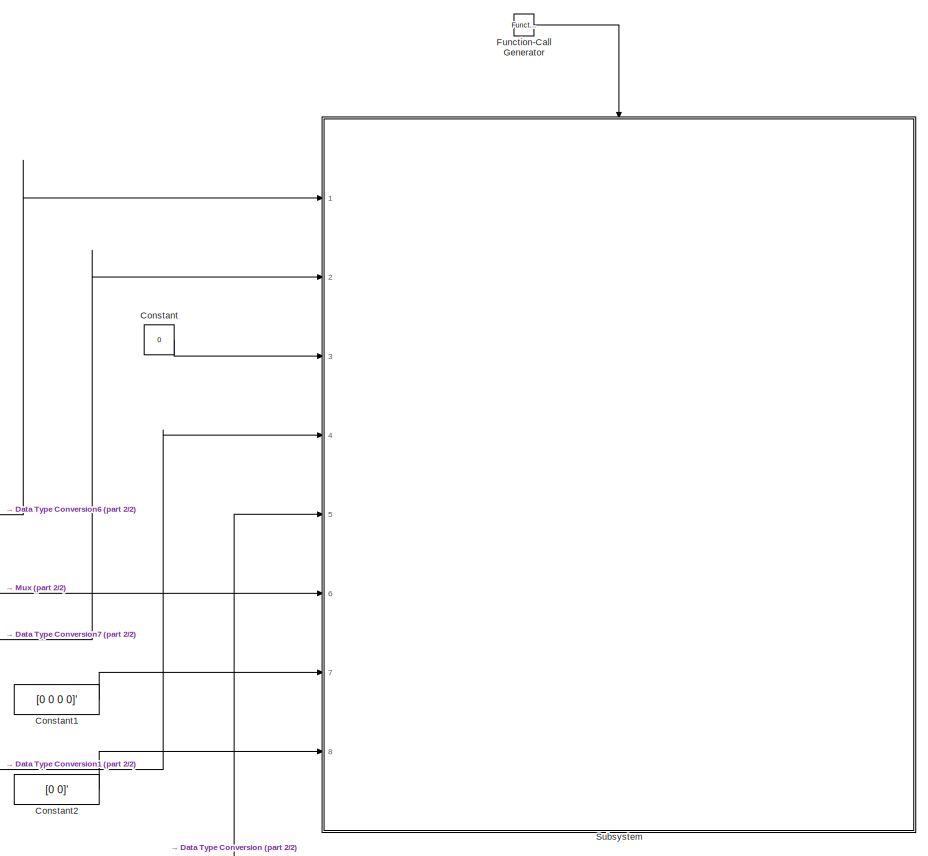
[diagram: root canvas - part 1/2, right side, full height]
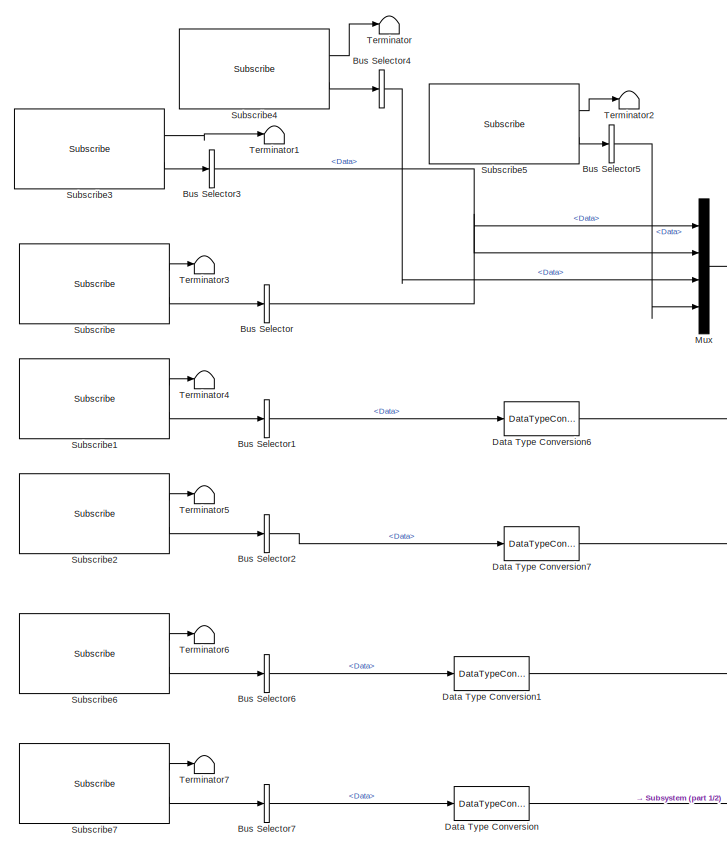
[diagram: root canvas - part 2/2, left side, full height]
MODEL slx_f530a9fc561e
KIND model
CONFIG AbsTol = auto
CONFIG EnableMultiTasking = off
CONFIG FixedStep = 0.001
CONFIG MaxStep = auto
CONFIG MinStep = auto
CONFIG RelTol = 1e-3
CONFIG SampleTimeConstraint = Unconstrained
CONFIG SolverName = FixedStepAuto
CONFIG StartTime = 0.0
CONFIG StopTime = 10.0
BLOCK [BusSelector] Bus Selector
  OutputSignals = Data
  Ports = [1, 1]
BLOCK [BusSelector] Bus Selector1
  OutputSignals = Data
  Ports = [1, 1]
BLOCK [BusSelector] Bus Selector2
  OutputSignals = Data
  Ports = [1, 1]
BLOCK [BusSelector] Bus Selector3
  OutputSignals = Data
  Ports = [1, 1]
BLOCK [BusSelector] Bus Selector4
  OutputSignals = Data
  Ports = [1, 1]
BLOCK [BusSelector] Bus Selector5
  OutputSignals = Data
  Ports = [1, 1]
BLOCK [BusSelector] Bus Selector6
  OutputSignals = Data
  Ports = [1, 1]
BLOCK [BusSelector] Bus Selector7
  OutputSignals = Data
  Ports = [1, 1]
BLOCK [Constant] Constant
  Value = 0
BLOCK [Constant] Constant1
  Value = [0 0 0 0]'
BLOCK [Constant] Constant2
  Value = [0 0]'
BLOCK [DataTypeConversion] Data Type Conversion
  OutDataTypeStr = double
  RndMeth = Floor
  SaturateOnIntegerOverflow = off
BLOCK [DataTypeConversion] Data Type Conversion1
  OutDataTypeStr = double
  RndMeth = Floor
  SaturateOnIntegerOverflow = off
BLOCK [DataTypeConversion] Data Type Conversion6
  OutDataTypeStr = double
  RndMeth = Floor
  SaturateOnIntegerOverflow = off
BLOCK [DataTypeConversion] Data Type Conversion7
  OutDataTypeStr = double
  RndMeth = Floor
  SaturateOnIntegerOverflow = off
BLOCK [Reference] Function-Call Generator  REF=simulink/Ports &
Subsystems/Function-Call
Generator
  Ports = [0, 1]
  SourceBlock = simulink/Ports &\nSubsystems/Function-Call\nGenerator
  SourceProductBaseCode = SL
  SourceType = Function-Call Generator
BLOCK [Mux] Mux
  DisplayOption = bar
  Ports = [4, 1]
BLOCK [Reference] Subscribe  REF=robotlib/Subscribe
  Ports = [0, 2]
  SourceBlock = robotlib/Subscribe
  SourceProductBaseCode = RR
  SourceType = ROS Subscribe
BLOCK [Reference] Subscribe1  REF=robotlib/Subscribe
  Ports = [0, 2]
  SourceBlock = robotlib/Subscribe
  SourceProductBaseCode = RR
  SourceType = ROS Subscribe
BLOCK [Reference] Subscribe2  REF=robotlib/Subscribe
  Ports = [0, 2]
  SourceBlock = robotlib/Subscribe
  SourceProductBaseCode = RR
  SourceType = ROS Subscribe
BLOCK [Reference] Subscribe3  REF=robotlib/Subscribe
  Ports = [0, 2]
  SourceBlock = robotlib/Subscribe
  SourceProductBaseCode = RR
  SourceType = ROS Subscribe
BLOCK [Reference] Subscribe4  REF=robotlib/Subscribe
  Ports = [0, 2]
  SourceBlock = robotlib/Subscribe
  SourceProductBaseCode = RR
  SourceType = ROS Subscribe
BLOCK [Reference] Subscribe5  REF=robotlib/Subscribe
  Ports = [0, 2]
  SourceBlock = robotlib/Subscribe
  SourceProductBaseCode = RR
  SourceType = ROS Subscribe
BLOCK [Reference] Subscribe6  REF=robotlib/Subscribe
  Ports = [0, 2]
  SourceBlock = robotlib/Subscribe
  SourceProductBaseCode = RR
  SourceType = ROS Subscribe
BLOCK [Reference] Subscribe7  REF=robotlib/Subscribe
  Ports = [0, 2]
  SourceBlock = robotlib/Subscribe
  SourceProductBaseCode = RR
  SourceType = ROS Subscribe
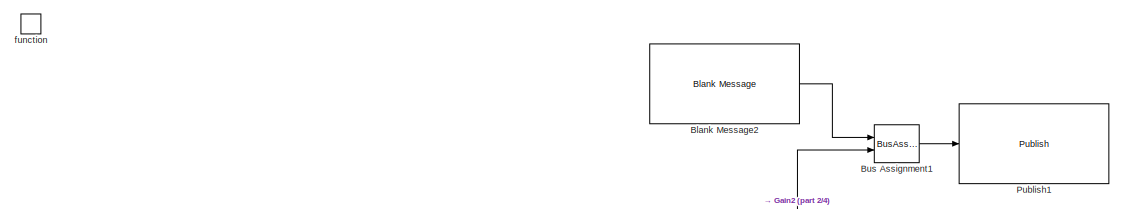
[diagram: Subsystem - part 1/4, top center region]
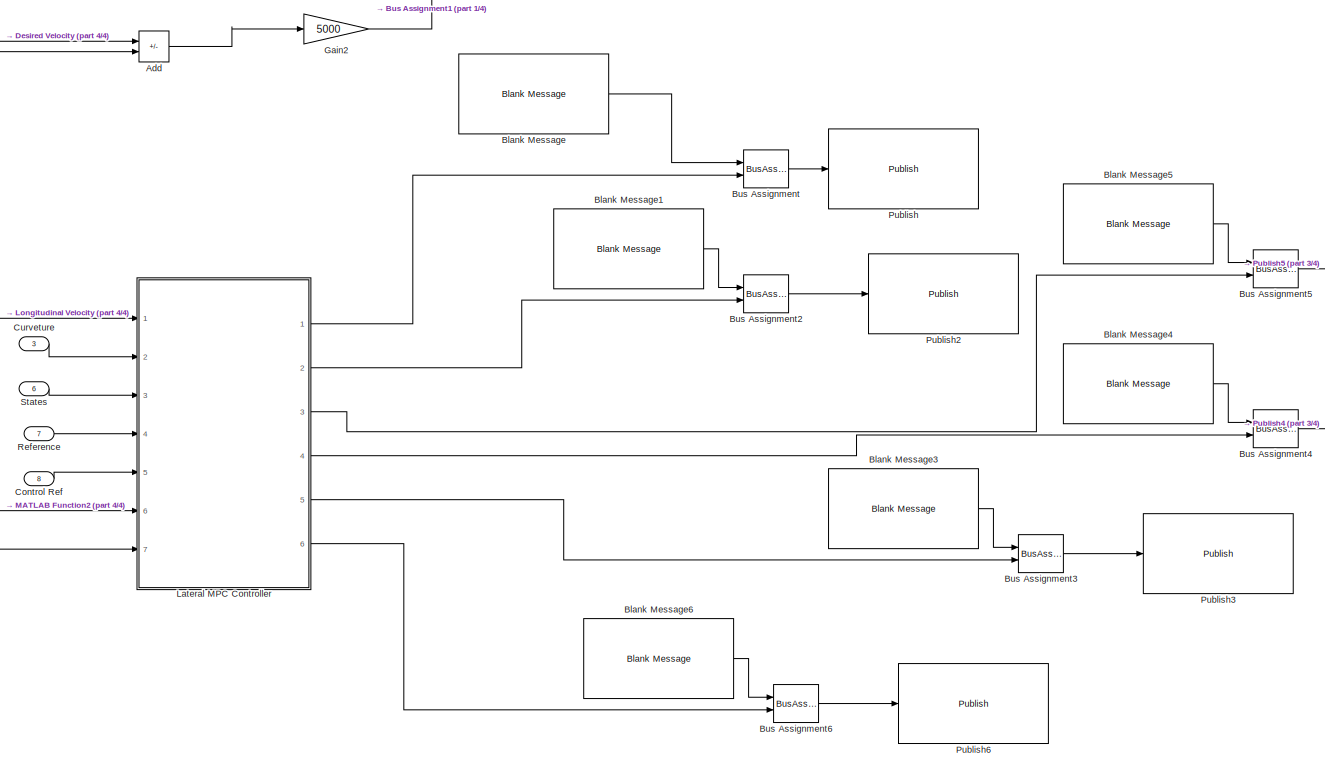
[diagram: Subsystem - part 2/4, center side, full height]
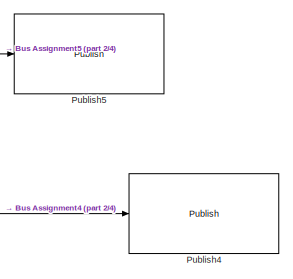
[diagram: Subsystem - part 3/4, middle right region]
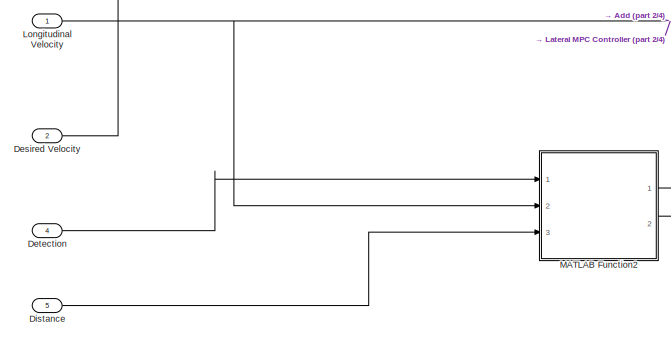
[diagram: Subsystem - part 4/4, bottom left region]
BLOCK [SubSystem] Subsystem
  Ports = [8, 0, 0, 1]
  RequestExecContextInheritance = off
BLOCK [Sum] Subsystem/Add
  IconShape = rectangular
  Inputs = +-
  Ports = [2, 1]
BLOCK [Reference] Subsystem/Blank Message  REF=robotlib/Blank Message
  Ports = [0, 1]
  SourceBlock = robotlib/Blank Message
  SourceProductBaseCode = RR
  SourceType = ROS Blank Message
BLOCK [Reference] Subsystem/Blank Message1  REF=robotlib/Blank Message
  Ports = [0, 1]
  SourceBlock = robotlib/Blank Message
  SourceProductBaseCode = RR
  SourceType = ROS Blank Message
BLOCK [Reference] Subsystem/Blank Message2  REF=robotlib/Blank Message
  Ports = [0, 1]
  SourceBlock = robotlib/Blank Message
  SourceProductBaseCode = RR
  SourceType = ROS Blank Message
BLOCK [Reference] Subsystem/Blank Message3  REF=robotlib/Blank Message
  Ports = [0, 1]
  SourceBlock = robotlib/Blank Message
  SourceProductBaseCode = RR
  SourceType = ROS Blank Message
BLOCK [Reference] Subsystem/Blank Message4  REF=robotlib/Blank Message
  Ports = [0, 1]
  SourceBlock = robotlib/Blank Message
  SourceProductBaseCode = RR
  SourceType = ROS Blank Message
BLOCK [Reference] Subsystem/Blank Message5  REF=robotlib/Blank Message
  Ports = [0, 1]
  SourceBlock = robotlib/Blank Message
  SourceProductBaseCode = RR
  SourceType = ROS Blank Message
BLOCK [Reference] Subsystem/Blank Message6  REF=robotlib/Blank Message
  Ports = [0, 1]
  SourceBlock = robotlib/Blank Message
  SourceProductBaseCode = RR
  SourceType = ROS Blank Message
BLOCK [BusAssignment] Subsystem/Bus Assignment
  AssignedSignals = Data
  Ports = [2, 1]
BLOCK [BusAssignment] Subsystem/Bus Assignment1
  AssignedSignals = Data
  Ports = [2, 1]
BLOCK [BusAssignment] Subsystem/Bus Assignment2
  AssignedSignals = Data
  Ports = [2, 1]
BLOCK [BusAssignment] Subsystem/Bus Assignment3
  AssignedSignals = Data
  Ports = [2, 1]
BLOCK [BusAssignment] Subsystem/Bus Assignment4
  AssignedSignals = Data
  Ports = [2, 1]
BLOCK [BusAssignment] Subsystem/Bus Assignment5
  AssignedSignals = Data
  Ports = [2, 1]
BLOCK [BusAssignment] Subsystem/Bus Assignment6
  AssignedSignals = Data
  Ports = [2, 1]
BLOCK [Inport] Subsystem/Control Ref
  Port = 8
BLOCK [Inport] Subsystem/Curveture
  Port = 3
BLOCK [Inport] Subsystem/Desired Velocity
  Port = 2
BLOCK [Inport] Subsystem/Detection
  Port = 4
BLOCK [Inport] Subsystem/Distance
  Port = 5
BLOCK [Gain] Subsystem/Gain2
  Gain = 5000
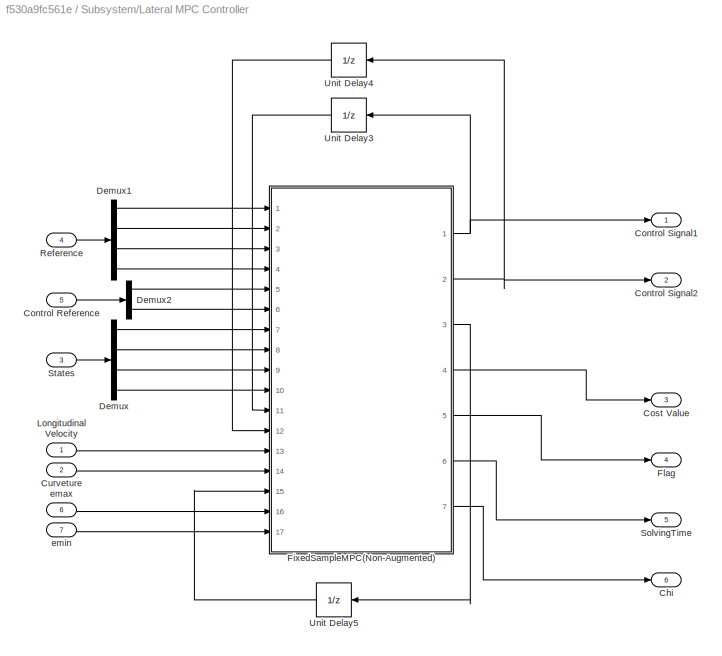
BLOCK [SubSystem] Subsystem/Lateral MPC Controller
  Ports = [7, 6]
  RequestExecContextInheritance = off
BLOCK [Outport] Subsystem/Lateral MPC Controller/Chi
  Port = 6
BLOCK [Inport] Subsystem/Lateral MPC Controller/Control Reference
  Port = 5
BLOCK [Outport] Subsystem/Lateral MPC Controller/Control Signal1
BLOCK [Outport] Subsystem/Lateral MPC Controller/Control Signal2
  Port = 2
BLOCK [Outport] Subsystem/Lateral MPC Controller/Cost Value
  Port = 3
BLOCK [Inport] Subsystem/Lateral MPC Controller/Curveture
  Port = 2
BLOCK [Demux] Subsystem/Lateral MPC Controller/Demux
  Ports = [1, 4]
BLOCK [Demux] Subsystem/Lateral MPC Controller/Demux1
  Ports = [1, 4]
BLOCK [Demux] Subsystem/Lateral MPC Controller/Demux2
  Outputs = 2
  Ports = [1, 2]
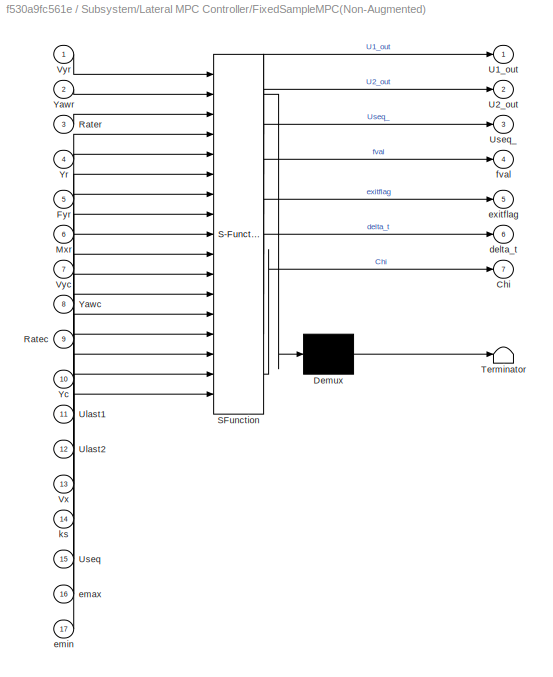
BLOCK [SubSystem] Subsystem/Lateral MPC Controller/FixedSampleMPC(Non-Augmented)
  ErrorFcn = Stateflow.Translate.translate
  PermitHierarchicalResolution = ExplicitOnly
  Ports = [17, 7]
  RequestExecContextInheritance = off
  SFBlockType = MATLAB Function
  TreatAsAtomicUnit = on
BLOCK [Demux] Subsystem/Lateral MPC Controller/FixedSampleMPC(Non-Augmented)/ Demux 
  Outputs = 1
  Ports = [1, 1]
BLOCK [S-Function] Subsystem/Lateral MPC Controller/FixedSampleMPC(Non-Augmented)/ SFunction 
  EnableBusSupport = on
  FunctionName = sf_sfun
  PortCounts = [17 8]
  Ports = [17, 8]
  SFcnIsStateOwnerBlock = off
  SFunctionDeploymentMode = off
  Tag = Stateflow S-Function 9
BLOCK [Terminator] Subsystem/Lateral MPC Controller/FixedSampleMPC(Non-Augmented)/ Terminator 
BLOCK [Outport] Subsystem/Lateral MPC Controller/FixedSampleMPC(Non-Augmented)/Chi
  Port = 7
BLOCK [Inport] Subsystem/Lateral MPC Controller/FixedSampleMPC(Non-Augmented)/Fyr
  Port = 5
BLOCK [Inport] Subsystem/Lateral MPC Controller/FixedSampleMPC(Non-Augmented)/Mxr
  Port = 6
BLOCK [Inport] Subsystem/Lateral MPC Controller/FixedSampleMPC(Non-Augmented)/Ratec
  Port = 9
BLOCK [Inport] Subsystem/Lateral MPC Controller/FixedSampleMPC(Non-Augmented)/Rater
  Port = 3
BLOCK [Outport] Subsystem/Lateral MPC Controller/FixedSampleMPC(Non-Augmented)/U1_out
BLOCK [Outport] Subsystem/Lateral MPC Controller/FixedSampleMPC(Non-Augmented)/U2_out
  Port = 2
BLOCK [Inport] Subsystem/Lateral MPC Controller/FixedSampleMPC(Non-Augmented)/Ulast1
  Port = 11
BLOCK [Inport] Subsystem/Lateral MPC Controller/FixedSampleMPC(Non-Augmented)/Ulast2
  Port = 12
BLOCK [Inport] Subsystem/Lateral MPC Controller/FixedSampleMPC(Non-Augmented)/Useq
  Port = 15
BLOCK [Outport] Subsystem/Lateral MPC Controller/FixedSampleMPC(Non-Augmented)/Useq_
  Port = 3
BLOCK [Inport] Subsystem/Lateral MPC Controller/FixedSampleMPC(Non-Augmented)/Vx
  Port = 13
BLOCK [Inport] Subsystem/Lateral MPC Controller/FixedSampleMPC(Non-Augmented)/Vyc
  Port = 7
BLOCK [Inport] Subsystem/Lateral MPC Controller/FixedSampleMPC(Non-Augmented)/Vyr
BLOCK [Inport] Subsystem/Lateral MPC Controller/FixedSampleMPC(Non-Augmented)/Yawc
  Port = 8
BLOCK [Inport] Subsystem/Lateral MPC Controller/FixedSampleMPC(Non-Augmented)/Yawr
  Port = 2
BLOCK [Inport] Subsystem/Lateral MPC Controller/FixedSampleMPC(Non-Augmented)/Yc
  Port = 10
BLOCK [Inport] Subsystem/Lateral MPC Controller/FixedSampleMPC(Non-Augmented)/Yr
  Port = 4
BLOCK [Outport] Subsystem/Lateral MPC Controller/FixedSampleMPC(Non-Augmented)/delta_t
  Port = 6
BLOCK [Inport] Subsystem/Lateral MPC Controller/FixedSampleMPC(Non-Augmented)/emax
  Port = 16
BLOCK [Inport] Subsystem/Lateral MPC Controller/FixedSampleMPC(Non-Augmented)/emin
  Port = 17
BLOCK [Outport] Subsystem/Lateral MPC Controller/FixedSampleMPC(Non-Augmented)/exitflag
  Port = 5
BLOCK [Outport] Subsystem/Lateral MPC Controller/FixedSampleMPC(Non-Augmented)/fval
  Port = 4
BLOCK [Inport] Subsystem/Lateral MPC Controller/FixedSampleMPC(Non-Augmented)/ks
  Port = 14
BLOCK [Outport] Subsystem/Lateral MPC Controller/Flag
  Port = 4
BLOCK [Inport] Subsystem/Lateral MPC Controller/Longitudinal Velocity
BLOCK [Inport] Subsystem/Lateral MPC Controller/Reference
  Port = 4
BLOCK [Outport] Subsystem/Lateral MPC Controller/SolvingTime
  Port = 5
BLOCK [Inport] Subsystem/Lateral MPC Controller/States
  Port = 3
BLOCK [UnitDelay] Subsystem/Lateral MPC Controller/Unit Delay3
  HasFrameUpgradeWarning = on
  SampleTime = -1
BLOCK [UnitDelay] Subsystem/Lateral MPC Controller/Unit Delay4
  HasFrameUpgradeWarning = on
  SampleTime = -1
BLOCK [UnitDelay] Subsystem/Lateral MPC Controller/Unit Delay5
  HasFrameUpgradeWarning = on
  InitialCondition = zeros(61,2)
  SampleTime = -1
BLOCK [Inport] Subsystem/Lateral MPC Controller/emax
  Port = 6
BLOCK [Inport] Subsystem/Lateral MPC Controller/emin
  Port = 7
BLOCK [Inport] Subsystem/Longitudinal Velocity
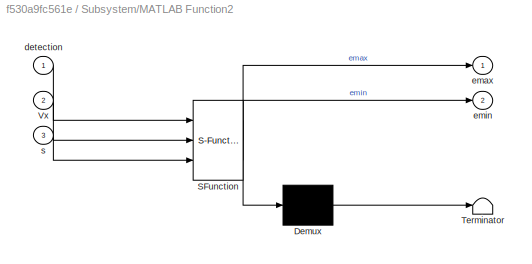
BLOCK [SubSystem] Subsystem/MATLAB Function2
  ErrorFcn = Stateflow.Translate.translate
  PermitHierarchicalResolution = ExplicitOnly
  Ports = [3, 2]
  RequestExecContextInheritance = off
  SFBlockType = MATLAB Function
  TreatAsAtomicUnit = on
BLOCK [Demux] Subsystem/MATLAB Function2/ Demux 
  Outputs = 1
  Ports = [1, 1]
BLOCK [S-Function] Subsystem/MATLAB Function2/ SFunction 
  EnableBusSupport = on
  FunctionName = sf_sfun
  PortCounts = [3 3]
  Ports = [3, 3]
  SFcnIsStateOwnerBlock = off
  SFunctionDeploymentMode = off
  Tag = Stateflow S-Function 2
BLOCK [Terminator] Subsystem/MATLAB Function2/ Terminator 
BLOCK [Inport] Subsystem/MATLAB Function2/Vx
  Port = 2
BLOCK [Inport] Subsystem/MATLAB Function2/detection
BLOCK [Outport] Subsystem/MATLAB Function2/emax
BLOCK [Outport] Subsystem/MATLAB Function2/emin
  Port = 2
BLOCK [Inport] Subsystem/MATLAB Function2/s
  Port = 3
BLOCK [Reference] Subsystem/Publish  REF=robotlib/Publish
  Ports = [1]
  SourceBlock = robotlib/Publish
  SourceProductBaseCode = RR
  SourceType = ROS Publish
BLOCK [Reference] Subsystem/Publish1  REF=robotlib/Publish
  Ports = [1]
  SourceBlock = robotlib/Publish
  SourceProductBaseCode = RR
  SourceType = ROS Publish
BLOCK [Reference] Subsystem/Publish2  REF=robotlib/Publish
  Ports = [1]
  SourceBlock = robotlib/Publish
  SourceProductBaseCode = RR
  SourceType = ROS Publish
BLOCK [Reference] Subsystem/Publish3  REF=robotlib/Publish
  Ports = [1]
  SourceBlock = robotlib/Publish
  SourceProductBaseCode = RR
  SourceType = ROS Publish
BLOCK [Reference] Subsystem/Publish4  REF=robotlib/Publish
  Ports = [1]
  SourceBlock = robotlib/Publish
  SourceProductBaseCode = RR
  SourceType = ROS Publish
BLOCK [Reference] Subsystem/Publish5  REF=robotlib/Publish
  Ports = [1]
  SourceBlock = robotlib/Publish
  SourceProductBaseCode = RR
  SourceType = ROS Publish
BLOCK [Reference] Subsystem/Publish6  REF=robotlib/Publish
  Ports = [1]
  SourceBlock = robotlib/Publish
  SourceProductBaseCode = RR
  SourceType = ROS Publish
BLOCK [Inport] Subsystem/Reference
  Port = 7
BLOCK [Inport] Subsystem/States
  Port = 6
BLOCK [TriggerPort] Subsystem/function
  Ports = []
  StatesWhenEnabling = held
  TriggerType = function-call
  VariantControl = (inherit)
BLOCK [Terminator] Terminator
BLOCK [Terminator] Terminator1
BLOCK [Terminator] Terminator2
BLOCK [Terminator] Terminator3
BLOCK [Terminator] Terminator4
BLOCK [Terminator] Terminator5
BLOCK [Terminator] Terminator6
BLOCK [Terminator] Terminator7
LINE Bus Selector1:1 -> Data Type Conversion6:1
LINE Bus Selector2:1 -> Data Type Conversion7:1
LINE Bus Selector3:1 -> Mux:2
LINE Bus Selector4:1 -> Mux:3
LINE Bus Selector5:1 -> Mux:4
LINE Bus Selector6:1 -> Data Type Conversion1:1
LINE Bus Selector7:1 -> Data Type Conversion:1
LINE Bus Selector:1 -> Mux:1
LINE Constant1:1 -> Subsystem:7
LINE Constant2:1 -> Subsystem:8
LINE Constant:1 -> Subsystem:3
LINE Data Type Conversion1:1 -> Subsystem:4
LINE Data Type Conversion6:1 -> Subsystem:1
LINE Data Type Conversion7:1 -> Subsystem:2
LINE Data Type Conversion:1 -> Subsystem:5
LINE Function-Call Generator:1 -> Subsystem:trigger
LINE Mux:1 -> Subsystem:6
LINE Subscribe1:1 -> Terminator4:1
LINE Subscribe1:2 -> Bus Selector1:1
LINE Subscribe2:1 -> Terminator5:1
LINE Subscribe2:2 -> Bus Selector2:1
LINE Subscribe3:1 -> Terminator1:1
LINE Subscribe3:2 -> Bus Selector3:1
LINE Subscribe4:1 -> Terminator:1
LINE Subscribe4:2 -> Bus Selector4:1
LINE Subscribe5:1 -> Terminator2:1
LINE Subscribe5:2 -> Bus Selector5:1
LINE Subscribe6:1 -> Terminator6:1
LINE Subscribe6:2 -> Bus Selector6:1
LINE Subscribe7:1 -> Terminator7:1
LINE Subscribe7:2 -> Bus Selector7:1
LINE Subscribe:1 -> Terminator3:1
LINE Subscribe:2 -> Bus Selector:1
LINE Subsystem/Add:1 -> Subsystem/Gain2:1
LINE Subsystem/Blank Message1:1 -> Subsystem/Bus Assignment2:1
LINE Subsystem/Blank Message2:1 -> Subsystem/Bus Assignment1:1
LINE Subsystem/Blank Message3:1 -> Subsystem/Bus Assignment3:1
LINE Subsystem/Blank Message4:1 -> Subsystem/Bus Assignment4:1
LINE Subsystem/Blank Message5:1 -> Subsystem/Bus Assignment5:1
LINE Subsystem/Blank Message6:1 -> Subsystem/Bus Assignment6:1
LINE Subsystem/Blank Message:1 -> Subsystem/Bus Assignment:1
LINE Subsystem/Bus Assignment1:1 -> Subsystem/Publish1:1
LINE Subsystem/Bus Assignment2:1 -> Subsystem/Publish2:1
LINE Subsystem/Bus Assignment3:1 -> Subsystem/Publish3:1
LINE Subsystem/Bus Assignment4:1 -> Subsystem/Publish4:1
LINE Subsystem/Bus Assignment5:1 -> Subsystem/Publish5:1
LINE Subsystem/Bus Assignment6:1 -> Subsystem/Publish6:1
LINE Subsystem/Bus Assignment:1 -> Subsystem/Publish:1
LINE Subsystem/Control Ref:1 -> Subsystem/Lateral MPC Controller:5
LINE Subsystem/Curveture:1 -> Subsystem/Lateral MPC Controller:2
LINE Subsystem/Desired Velocity:1 -> Subsystem/Add:1
LINE Subsystem/Detection:1 -> Subsystem/MATLAB Function2:1
LINE Subsystem/Distance:1 -> Subsystem/MATLAB Function2:3
LINE Subsystem/Gain2:1 -> Subsystem/Bus Assignment1:2
LINE Subsystem/Lateral MPC Controller/Control Reference:1 -> Subsystem/Lateral MPC Controller/Demux2:1
LINE Subsystem/Lateral MPC Controller/Curveture:1 -> Subsystem/Lateral MPC Controller/FixedSampleMPC(Non-Augmented):14
LINE Subsystem/Lateral MPC Controller/Demux1:1 -> Subsystem/Lateral MPC Controller/FixedSampleMPC(Non-Augmented):1
LINE Subsystem/Lateral MPC Controller/Demux1:2 -> Subsystem/Lateral MPC Controller/FixedSampleMPC(Non-Augmented):2
LINE Subsystem/Lateral MPC Controller/Demux1:3 -> Subsystem/Lateral MPC Controller/FixedSampleMPC(Non-Augmented):3
LINE Subsystem/Lateral MPC Controller/Demux1:4 -> Subsystem/Lateral MPC Controller/FixedSampleMPC(Non-Augmented):4
LINE Subsystem/Lateral MPC Controller/Demux2:1 -> Subsystem/Lateral MPC Controller/FixedSampleMPC(Non-Augmented):5
LINE Subsystem/Lateral MPC Controller/Demux2:2 -> Subsystem/Lateral MPC Controller/FixedSampleMPC(Non-Augmented):6
LINE Subsystem/Lateral MPC Controller/Demux:1 -> Subsystem/Lateral MPC Controller/FixedSampleMPC(Non-Augmented):7
LINE Subsystem/Lateral MPC Controller/Demux:2 -> Subsystem/Lateral MPC Controller/FixedSampleMPC(Non-Augmented):8
LINE Subsystem/Lateral MPC Controller/Demux:3 -> Subsystem/Lateral MPC Controller/FixedSampleMPC(Non-Augmented):9
LINE Subsystem/Lateral MPC Controller/Demux:4 -> Subsystem/Lateral MPC Controller/FixedSampleMPC(Non-Augmented):10
NET Subsystem/Lateral MPC Controller/FixedSampleMPC(Non-Augmented):1 -> Subsystem/Lateral MPC Controller/Control Signal1:1, Subsystem/Lateral MPC Controller/Unit Delay3:1
NET Subsystem/Lateral MPC Controller/FixedSampleMPC(Non-Augmented):2 -> Subsystem/Lateral MPC Controller/Control Signal2:1, Subsystem/Lateral MPC Controller/Unit Delay4:1
LINE Subsystem/Lateral MPC Controller/FixedSampleMPC(Non-Augmented):3 -> Subsystem/Lateral MPC Controller/Unit Delay5:1
LINE Subsystem/Lateral MPC Controller/FixedSampleMPC(Non-Augmented):4 -> Subsystem/Lateral MPC Controller/Cost Value:1
LINE Subsystem/Lateral MPC Controller/FixedSampleMPC(Non-Augmented):5 -> Subsystem/Lateral MPC Controller/Flag:1
LINE Subsystem/Lateral MPC Controller/FixedSampleMPC(Non-Augmented):6 -> Subsystem/Lateral MPC Controller/SolvingTime:1
LINE Subsystem/Lateral MPC Controller/FixedSampleMPC(Non-Augmented):7 -> Subsystem/Lateral MPC Controller/Chi:1
LINE Subsystem/Lateral MPC Controller/Longitudinal Velocity:1 -> Subsystem/Lateral MPC Controller/FixedSampleMPC(Non-Augmented):13
LINE Subsystem/Lateral MPC Controller/Reference:1 -> Subsystem/Lateral MPC Controller/Demux1:1
LINE Subsystem/Lateral MPC Controller/States:1 -> Subsystem/Lateral MPC Controller/Demux:1
LINE Subsystem/Lateral MPC Controller/Unit Delay3:1 -> Subsystem/Lateral MPC Controller/FixedSampleMPC(Non-Augmented):11
LINE Subsystem/Lateral MPC Controller/Unit Delay4:1 -> Subsystem/Lateral MPC Controller/FixedSampleMPC(Non-Augmented):12
LINE Subsystem/Lateral MPC Controller/Unit Delay5:1 -> Subsystem/Lateral MPC Controller/FixedSampleMPC(Non-Augmented):15
LINE Subsystem/Lateral MPC Controller/emax:1 -> Subsystem/Lateral MPC Controller/FixedSampleMPC(Non-Augmented):16
LINE Subsystem/Lateral MPC Controller/emin:1 -> Subsystem/Lateral MPC Controller/FixedSampleMPC(Non-Augmented):17
LINE Subsystem/Lateral MPC Controller:1 -> Subsystem/Bus Assignment:2
LINE Subsystem/Lateral MPC Controller:2 -> Subsystem/Bus Assignment2:2
LINE Subsystem/Lateral MPC Controller:3 -> Subsystem/Bus Assignment5:2
LINE Subsystem/Lateral MPC Controller:4 -> Subsystem/Bus Assignment4:2
LINE Subsystem/Lateral MPC Controller:5 -> Subsystem/Bus Assignment3:2
LINE Subsystem/Lateral MPC Controller:6 -> Subsystem/Bus Assignment6:2
NET Subsystem/Longitudinal Velocity:1 -> Subsystem/Add:2, Subsystem/Lateral MPC Controller:1, Subsystem/MATLAB Function2:2
LINE Subsystem/MATLAB Function2:1 -> Subsystem/Lateral MPC Controller:6
LINE Subsystem/MATLAB Function2:2 -> Subsystem/Lateral MPC Controller:7
LINE Subsystem/Reference:1 -> Subsystem/Lateral MPC Controller:4
LINE Subsystem/States:1 -> Subsystem/Lateral MPC Controller:3
note: NET lines group one-source signal fan-out (src -> all destinations, sorted); 1:1 wires keep LINE
CHART Subsystem/MATLAB Function2 states=1 transitions=1
  STATE_LABEL 'eML_blk_kernel()'
  STATE_LABEL 'SCRIPT:\nfunction [emax,emin] = fcn(detection,Vx,s)\nPredictionHorizon=60;\nTs=0.05;\nk = round(s/Vx/Ts);\nif k>PredictionHorizon\n    k =PredictionHorizon;\nelseif k<20\n    k=20;\nend\n\nif detection == 1\n    emin = -10*ones(PredictionHorizon,1);\n    emax=   10*ones(PredictionHorizon,1);\n    k1=k-round(3/Vx/Ts);\n    k2=k+round(3/Vx/Ts);\n    if k1<1\n        k1=1;\n    end\n    if k2>PredictionHorizon\n        ...<+155ch>'
CHART Subsystem/Lateral MPC Controller/FixedSampleMPC(Non-Augmented) states=1 transitions=1
  STATE_LABEL 'eML_blk_kernel()'
  STATE_LABEL "SCRIPT:\nfunction [U1_out,U2_out,Useq_,fval,exitflag,delta_t,Chi] = fcn(Vyr,Yawr,Rater,Yr, Fyr,Mxr,Vyc,Yawc,Ratec,Yc,Ulast1,Ulast2,Vx,ks,Useq,emax,emin)\n%Vyr lateral velocity, Yawr yaw angle, Rater yaw rate, Yr lateral position\n%Fyr lateral force in front tyre,Mxr moment generated by longitudinal force\n%'r'means reference ||  'c'means current\n    if Vx<0.1\n        Vx=0.001;%make sure many expressio...<+3608ch>"
CHART  states=0 transitions=0
CHART  states=0 transitions=0
